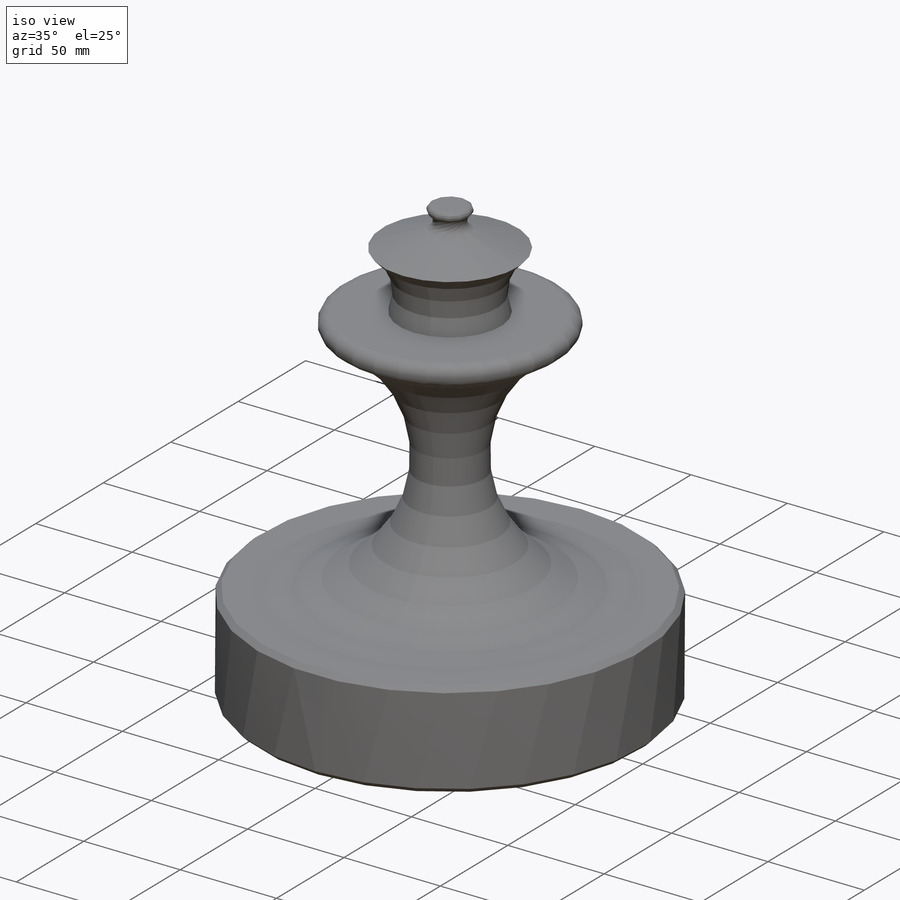
[diagram: iso view]
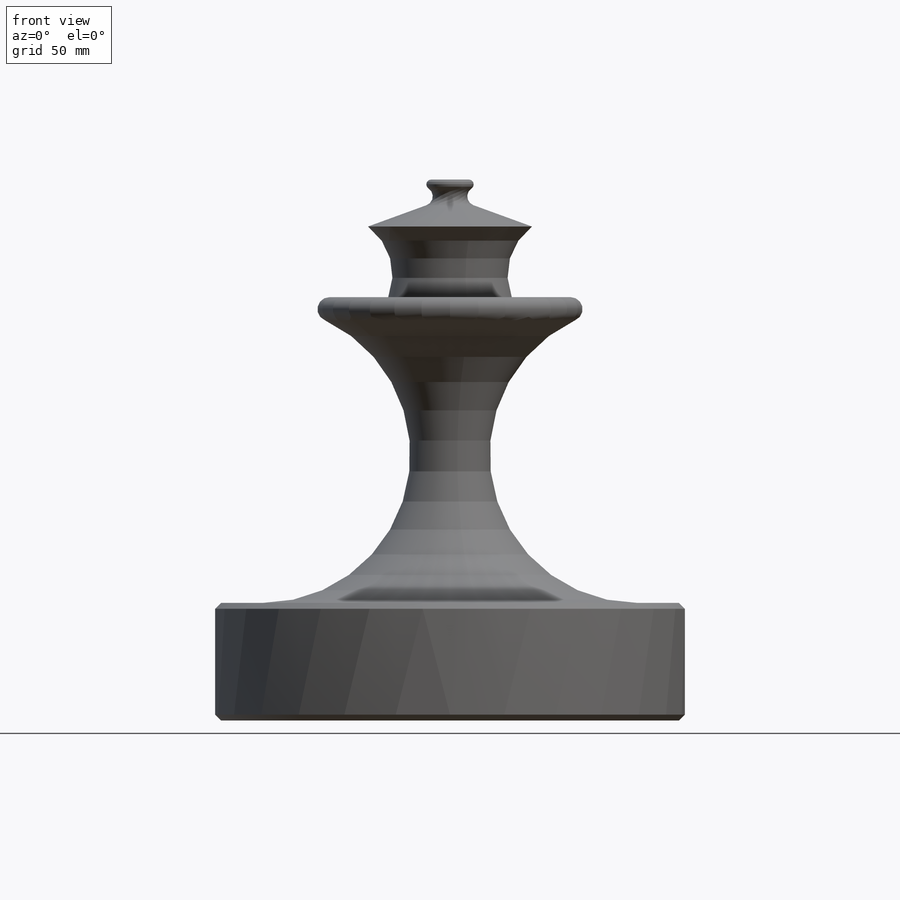
[diagram: front view]
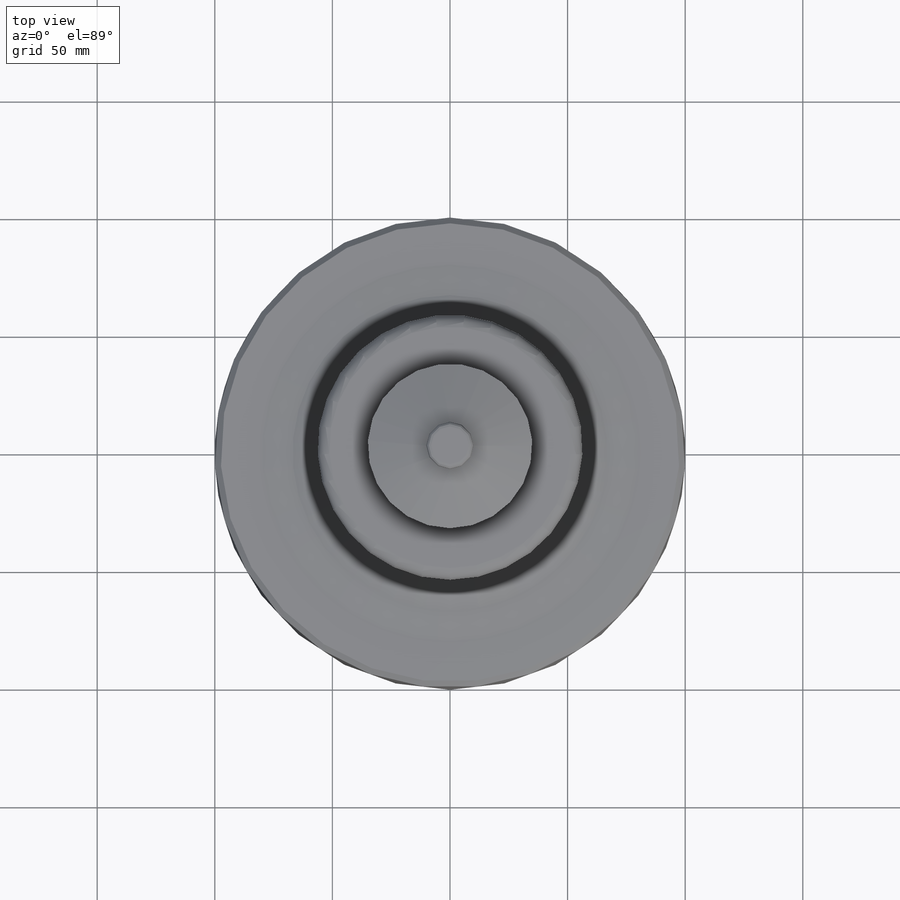
[diagram: top view]
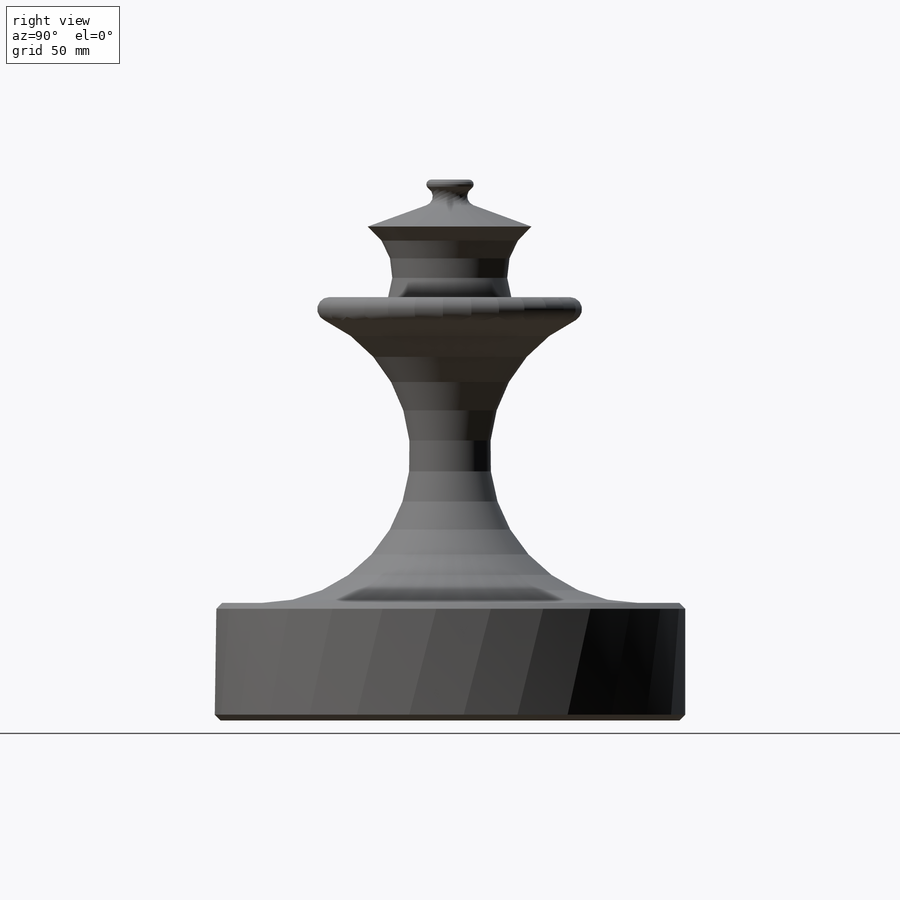
[diagram: right view]
SOLIDWORKS PART (.sldprt)
format: sldprt  version: not decoded by parser v0  size: 186,368 bytes
history: native  units: mm
features: plane x3, sketch x2, material x1, revolve x1, extrude x1, chamfer x1 (+9 scaffold rows collapsed)
feature tree (18):
  scaffold x9  (default folders/planes/origin — collapsed)
  material  "Matériau <non spécifié>"
  plane  "Face"
  plane  "Dessus"
  plane  "Droite"
  sketch  "Esquisse1"  dims[c1.D5=20.0mm c1.D6=50.0mm c1.D1=180.0mm c1.D2=80.0mm c1.D3=20.0mm c1.D4=30.0mm c1.D7=25.0mm c2.D6=20.0mm c2.D7=40.0mm c2.D4=130.0mm c2.D3=8.0mm c2.D5=25.0mm c3.D6=25.0mm c3.D7=30.0mm]
  revolve  "Révolution2"  Angle=360deg
  sketch  "Esquisse2"  dims[D1=200.0mm]
  extrude  "Extrusion1"  Depth=50mm
  chamfer  "Chanfrein1"  Distance=2.5mm Angle=45deg
decode coverage: 5 of 5 modeling features carry decoded parameters
note: suppression state not decoded; provenance and decode notes live in map.json
